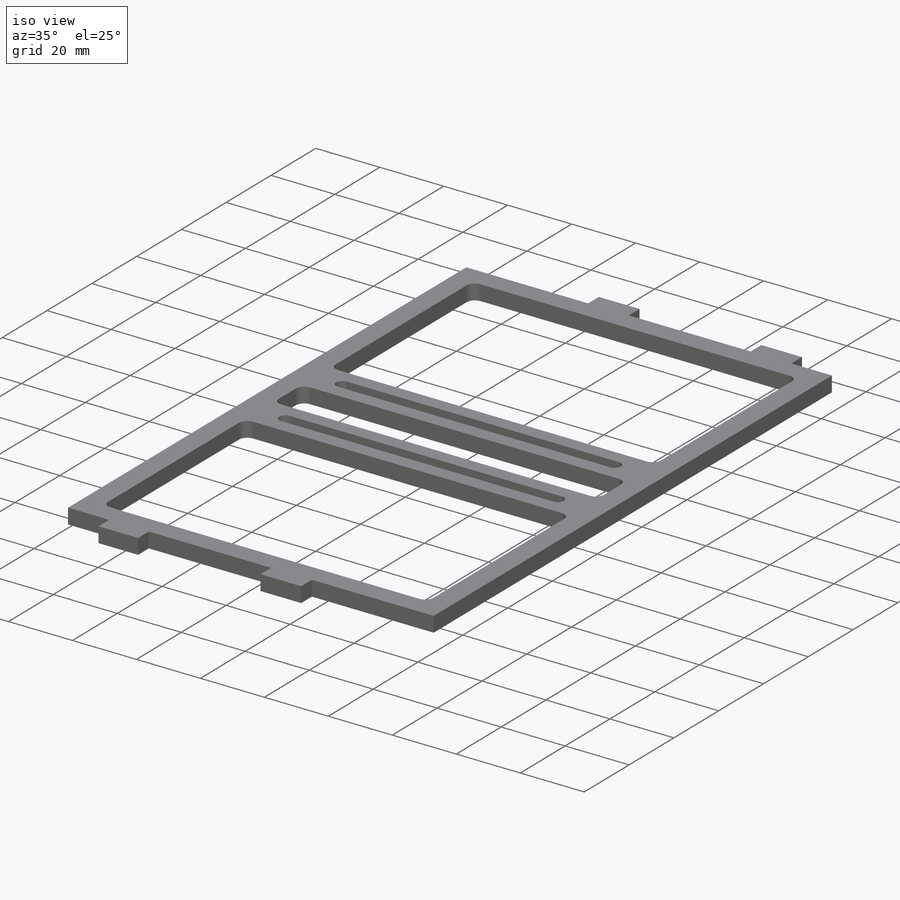
[diagram: iso view]
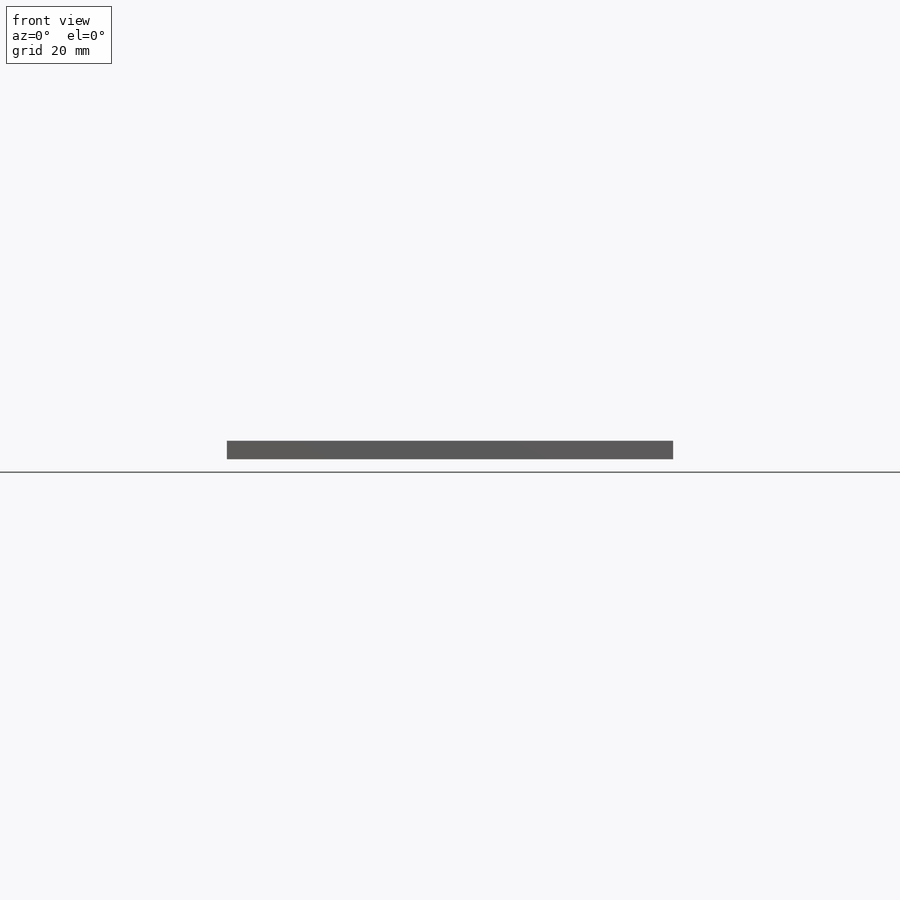
[diagram: front view]
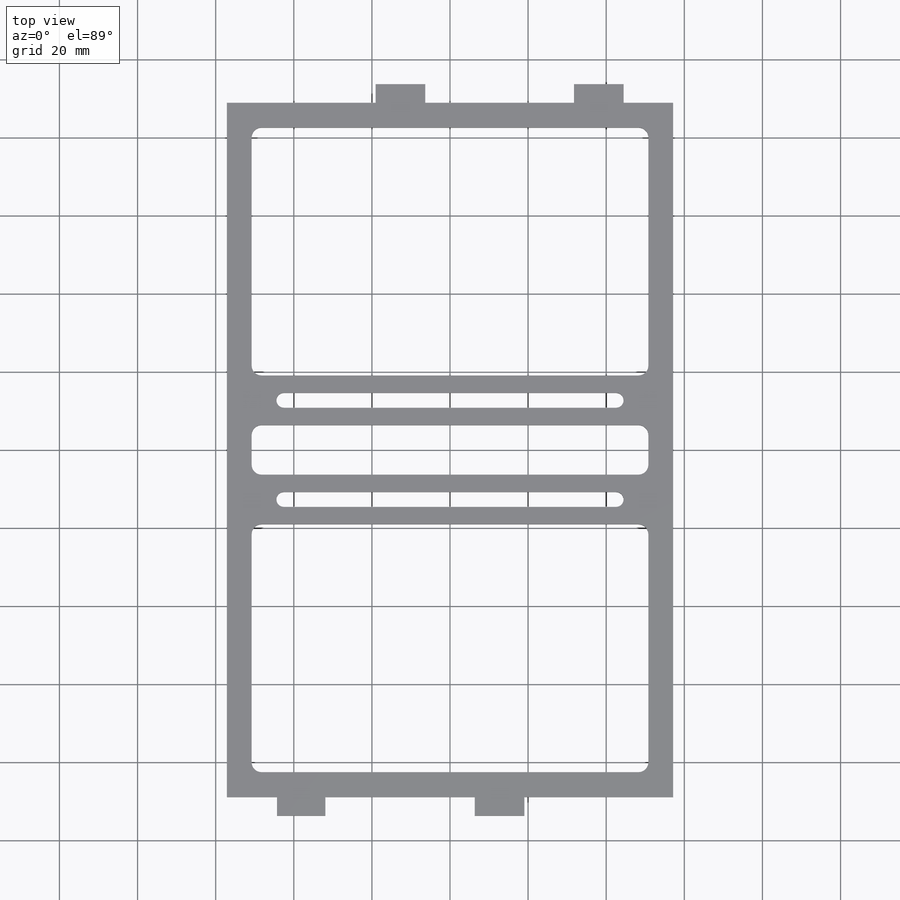
[diagram: top view]
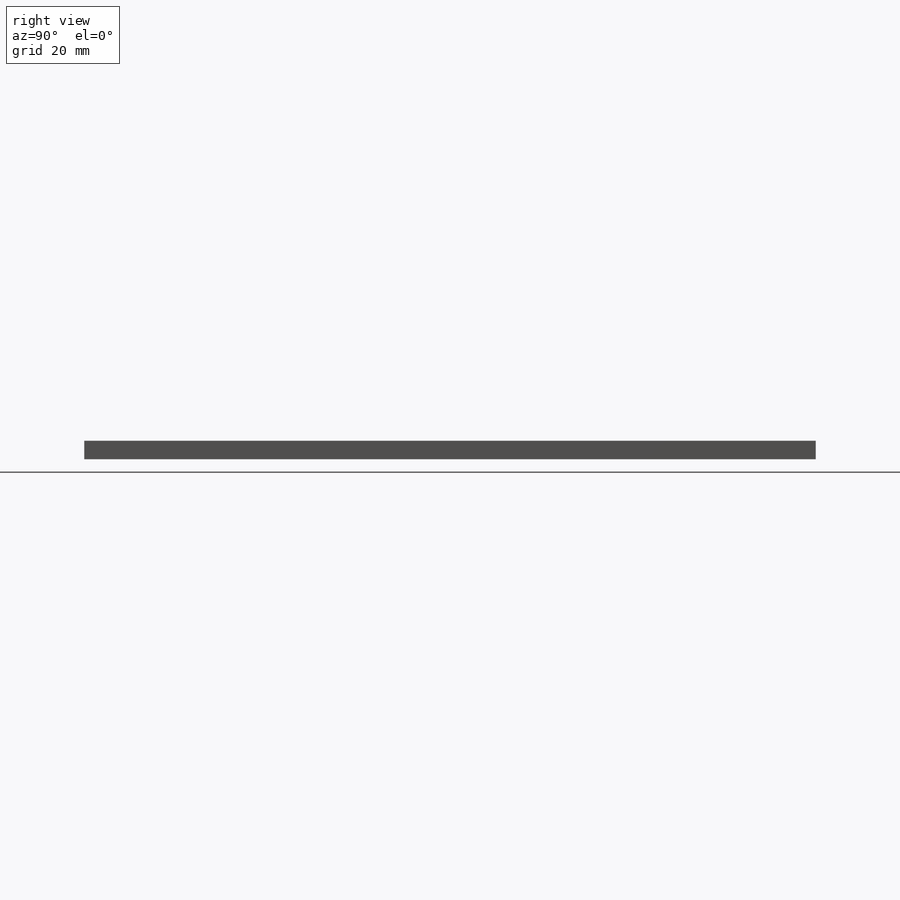
[diagram: right view]
SOLIDWORKS PART (.sldprt)
format: sldprt  version: not decoded by parser v0  size: 343,040 bytes
history: native  units: mm
features: sketch x7, extrude x5, fillet x2, material x1, hole x1 (+11 scaffold rows collapsed)
feature tree (27):
  scaffold x11  (default folders/planes/origin — collapsed)
  material  "6061-T6 (SS)"
  sketch  "Sketch1"  dims[D1=114.3mm D2=177.8mm D3=6.35mm]
  extrude  "Boss-Extrude1"  Depth=4.7625mm
  sketch  "Sketch2"  dims[c1.D1=19.05mm c1.D2=50.8mm c1.D3=12.7mm c1.D4=4.7625mm c2.D4=90.0deg]
  extrude  "Boss-Extrude2"  Depth=4.7625mm
  sketch  "Sketch3"  dims[D1=12.7mm D2=12.7mm D3=19.05mm D4=50.8mm]
  extrude  "Boss-Extrude3"  Depth=4.7625mm
  sketch  "Sketch4"  dims[D1=12.7mm]
  extrude  "Boss-Extrude4"  Depth=4.7625mm
  hole  "#6 Clearance Hole1"  Diameter=3.7973mm Depth=25.4mm
  sketch  "Sketch6"  dims[D1=~98.24974mm D2=~22.60092mm D3=60.325mm]
  sketch  "Sketch5"  dims[hole-wizard template sketch: 50 standard entries collapsed; hole parameters above]
  sketch  "Sketch7"  dims[D1=12.7mm D2=12.7mm D3=12.7mm D4=12.7mm D5=88.9mm D6=88.9mm D7=3.81mm D8=3.81mm]
  extrude  "Boss-Extrude5"  Depth=4.7625mm
  fillet  "Fillet1"  Radius=2.54mm
  fillet  "Fillet2"  Radius=1.905mm
decode coverage: 15 of 15 modeling features carry decoded parameters
note: ~ marks probable driven/reference dimensions
note: suppression state not decoded; provenance and decode notes live in map.json
